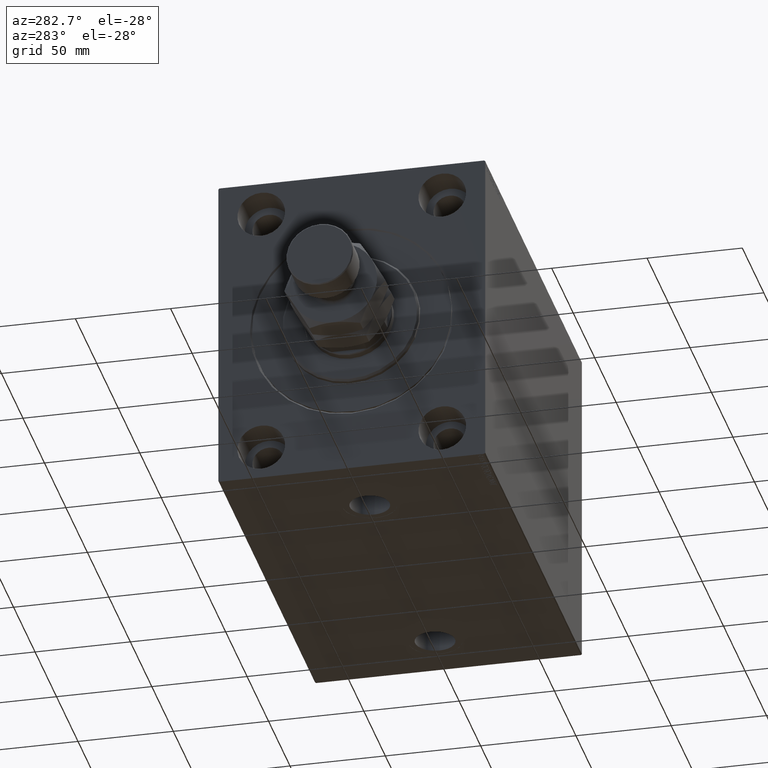
[diagram: clean part render]
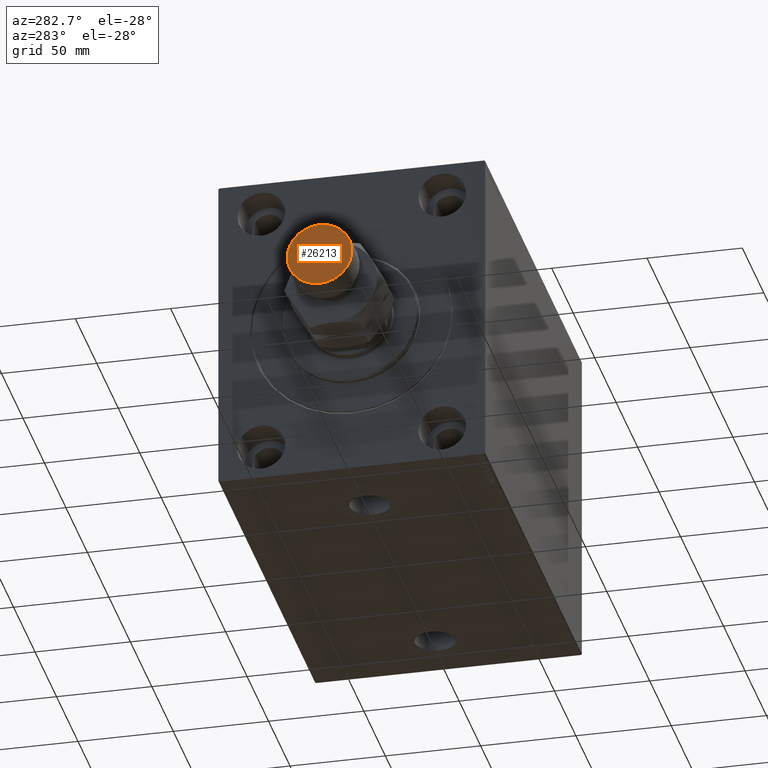
[diagram: same view with one face highlighted and labeled with its STEP entity id]
A machine part, auxiliary view. The second image highlights one B-rep face of the part: STEP entity #26213.
In plain terms, the highlighted planar face has unit normal (-1, 0, 0).
Its self-contained STEP definition (entity closure, byte-faithful):
#2361 = AXIS2_PLACEMENT_3D ( 'NONE', #7269, #3941, #32964 ) ;
#3460 = EDGE_CURVE ( 'NONE', #40201, #43272, #32174, .T. ) ;
#3941 = DIRECTION ( 'NONE',  ( 0.000000000000000000, 0.000000000000000000, 1.000000000000000000 ) ) ;
#4652 = ORIENTED_EDGE ( 'NONE', *, *, #21925, .T. ) ;
#5697 = ORIENTED_EDGE ( 'NONE', *, *, #3460, .T. ) ;
#7269 = CARTESIAN_POINT ( 'NONE',  ( 0.000000000000000000, 0.000000000000000000, 60.00000000000000000 ) ) ;
#13459 = FACE_OUTER_BOUND ( 'NONE', #36078, .T. ) ;
#14989 = CARTESIAN_POINT ( 'NONE',  ( 16.99999999999998579, 2.112515728529183672E-15, 60.00000000000000000 ) ) ;
#17068 = CARTESIAN_POINT ( 'NONE',  ( -16.99999999999998579, 0.000000000000000000, 60.00000000000000000 ) ) ;
#21537 = AXIS2_PLACEMENT_3D ( 'NONE', #43193, #35574, #31777 ) ;
#21925 = EDGE_CURVE ( 'NONE', #43272, #40201, #41128, .T. ) ;
#22734 = DIRECTION ( 'NONE',  ( 0.000000000000000000, 0.000000000000000000, 1.000000000000000000 ) ) ;
#22955 = CARTESIAN_POINT ( 'NONE',  ( 0.000000000000000000, 0.000000000000000000, 60.00000000000000000 ) ) ;
#26213 = ADVANCED_FACE ( 'NONE', ( #13459 ), #35802, .T. ) ;
#31678 = DIRECTION ( 'NONE',  ( 1.000000000000000000, 0.000000000000000000, 0.000000000000000000 ) ) ;
#31777 = DIRECTION ( 'NONE',  ( 1.000000000000000000, 0.000000000000000000, -0.000000000000000000 ) ) ;
#32174 = CIRCLE ( 'NONE', #34446, 16.99999999999998579 ) ;
#32964 = DIRECTION ( 'NONE',  ( 1.000000000000000000, 0.000000000000000000, 0.000000000000000000 ) ) ;
#34446 = AXIS2_PLACEMENT_3D ( 'NONE', #22955, #22734, #31678 ) ;
#35574 = DIRECTION ( 'NONE',  ( 0.000000000000000000, 0.000000000000000000, 1.000000000000000000 ) ) ;
#35802 = PLANE ( 'NONE',  #21537 ) ;
#36078 = EDGE_LOOP ( 'NONE', ( #5697, #4652 ) ) ;
#40201 = VERTEX_POINT ( 'NONE', #17068 ) ;
#41128 = CIRCLE ( 'NONE', #2361, 16.99999999999998579 ) ;
#43193 = CARTESIAN_POINT ( 'NONE',  ( 0.000000000000000000, 0.000000000000000000, 60.00000000000000000 ) ) ;
#43272 = VERTEX_POINT ( 'NONE', #14989 ) ;